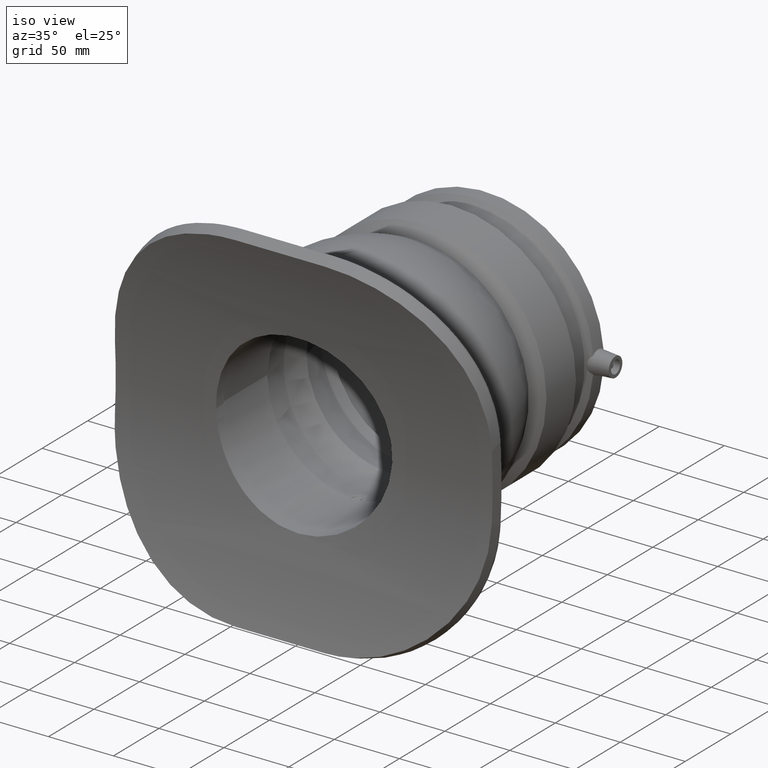
[diagram: clean part render]
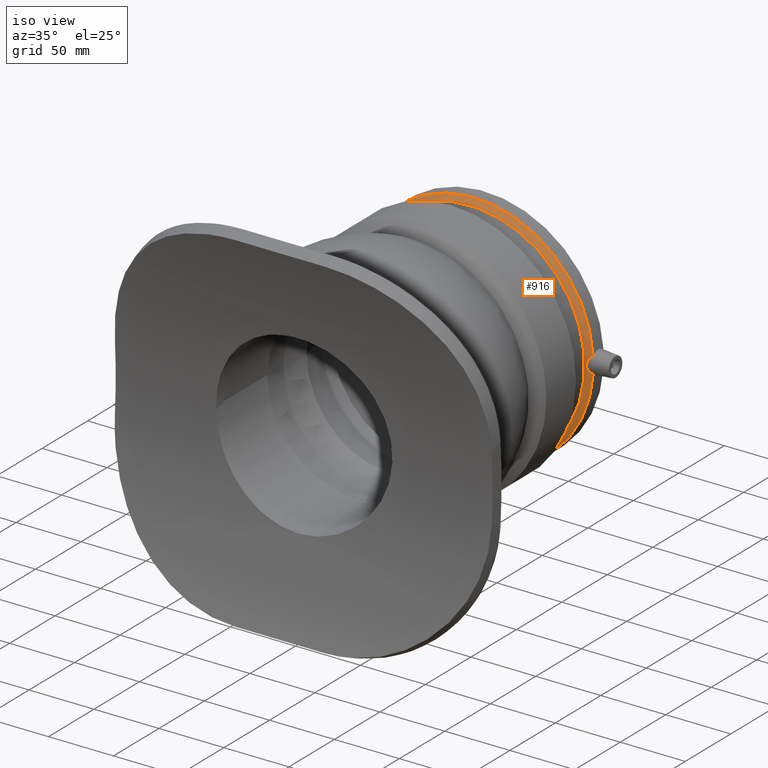
[diagram: same view with one face highlighted and labeled with its STEP entity id]
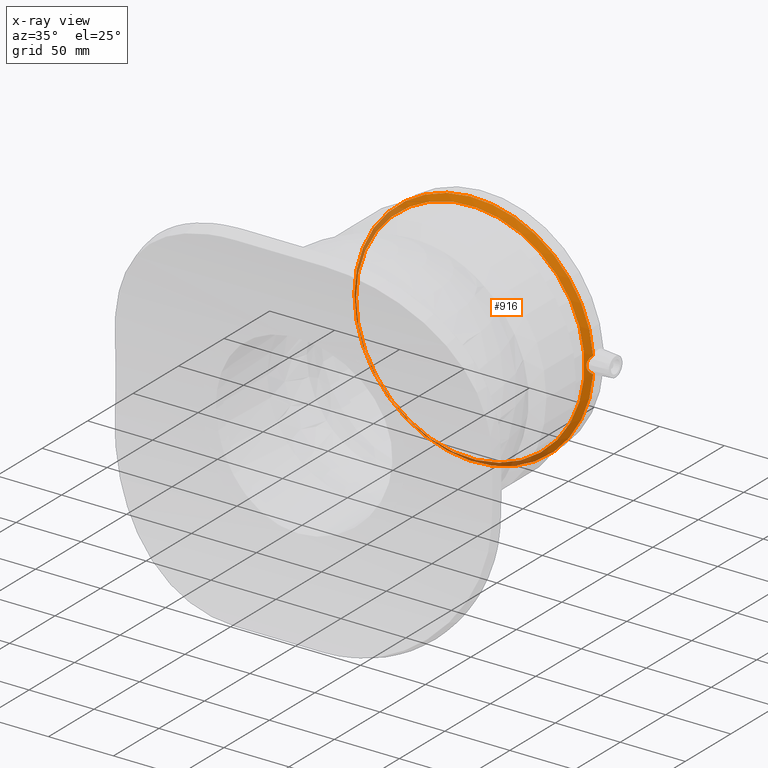
[diagram: x-ray of the same camera — body ghosted, the highlighted face saturated]
A machine part, iso view. The second image highlights one B-rep face of the part: STEP entity #916.
The next image is the same camera in x-ray: the body ghosted, the highlighted face saturated — about 23% of this face is hidden behind the body in this view.
In plain terms, the highlighted conical surface has half-angle 45 deg.
Its self-contained STEP definition (entity closure, byte-faithful):
#87=B_SPLINE_CURVE_WITH_KNOTS('',3,(#1377,#1378,#1379,#1380,#1381,#1382,
#1383,#1384,#1385,#1386,#1387,#1388,#1389,#1390),.UNSPECIFIED.,.F.,.F.,
(4,2,2,2,2,2,4),(1.4263817693966,1.6404548415016,1.93214353787838,2.22383223425516,
2.51552093063194,2.80720962700873,3.02128269911373),.UNSPECIFIED.);
#131=CONICAL_SURFACE('',#1015,90.,45.);
#160=FACE_BOUND('',#319,.T.);
#223=FACE_OUTER_BOUND('',#318,.T.);
#318=EDGE_LOOP('',(#695,#696));
#319=EDGE_LOOP('',(#697));
#391=CIRCLE('',#1014,88.);
#392=CIRCLE('',#1016,92.);
#432=VERTEX_POINT('',#1375);
#433=VERTEX_POINT('',#1376);
#455=VERTEX_POINT('',#1666);
#517=EDGE_CURVE('',#432,#433,#87,.T.);
#543=EDGE_CURVE('',#455,#455,#391,.T.);
#544=EDGE_CURVE('',#432,#433,#392,.T.);
#695=ORIENTED_EDGE('',*,*,#517,.T.);
#696=ORIENTED_EDGE('',*,*,#544,.F.);
#697=ORIENTED_EDGE('',*,*,#543,.T.);
#916=ADVANCED_FACE('',(#223,#160),#131,.T.);
#1014=AXIS2_PLACEMENT_3D('',#1667,#1189,#1190);
#1015=AXIS2_PLACEMENT_3D('',#1668,#1191,#1192);
#1016=AXIS2_PLACEMENT_3D('',#1669,#1193,#1194);
#1189=DIRECTION('center_axis',(0.,1.,0.));
#1190=DIRECTION('ref_axis',(1.,0.,0.));
#1191=DIRECTION('center_axis',(0.,1.,0.));
#1192=DIRECTION('ref_axis',(-1.,0.,0.));
#1193=DIRECTION('center_axis',(0.,1.,0.));
#1194=DIRECTION('ref_axis',(1.,0.,0.));
#1375=CARTESIAN_POINT('',(91.7686795260562,146.208,-6.51992776370901));
#1376=CARTESIAN_POINT('',(91.7686795260562,146.208,6.51992776370901));
#1377=CARTESIAN_POINT('Ctrl Pts',(91.7686795260563,146.208,-6.51992776370892));
#1378=CARTESIAN_POINT('Ctrl Pts',(91.3171444325082,145.731837040114,-6.15639413253726));
#1379=CARTESIAN_POINT('Ctrl Pts',(90.9009424978453,145.288540171165,-5.734444240214));
#1380=CARTESIAN_POINT('Ctrl Pts',(90.035577725633,144.360210842786,-4.62470789176811));
#1381=CARTESIAN_POINT('Ctrl Pts',(89.5734533164351,143.85797892466,-3.81167543351705));
#1382=CARTESIAN_POINT('Ctrl Pts',(88.9433415217213,143.168941710032,-1.9861630157502));
#1383=CARTESIAN_POINT('Ctrl Pts',(88.7766399076177,142.984639907618,-0.972295654589273));
#1384=CARTESIAN_POINT('Ctrl Pts',(88.7766399076177,142.984639907618,0.972295654589272));
#1385=CARTESIAN_POINT('Ctrl Pts',(88.9433415217212,143.168941710032,1.98616301575022));
#1386=CARTESIAN_POINT('Ctrl Pts',(89.5734533164351,143.85797892466,3.81167543351707));
#1387=CARTESIAN_POINT('Ctrl Pts',(90.035577725633,144.360210842786,4.62470789176811));
#1388=CARTESIAN_POINT('Ctrl Pts',(90.9009424978453,145.288540171165,5.73444424021401));
#1389=CARTESIAN_POINT('Ctrl Pts',(91.3171444325082,145.731837040114,6.15639413253724));
#1390=CARTESIAN_POINT('Ctrl Pts',(91.7686795260563,146.208,6.51992776370891));
#1666=CARTESIAN_POINT('',(-88.,142.208,0.));
#1667=CARTESIAN_POINT('Origin',(0.,142.208,0.));
#1668=CARTESIAN_POINT('Origin',(0.,144.208,0.));
#1669=CARTESIAN_POINT('Origin',(0.,146.208,0.));